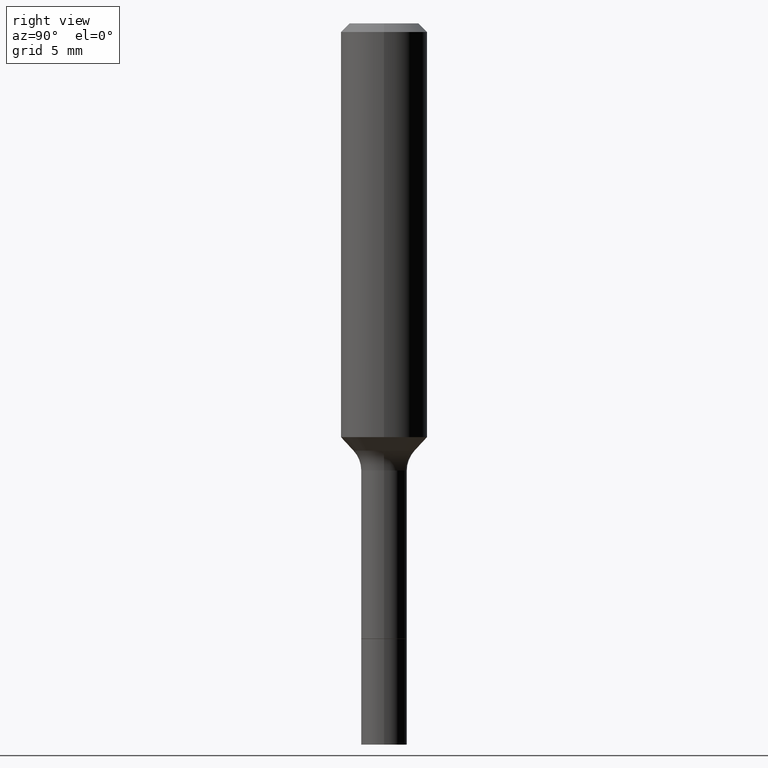
[diagram: clean part render]
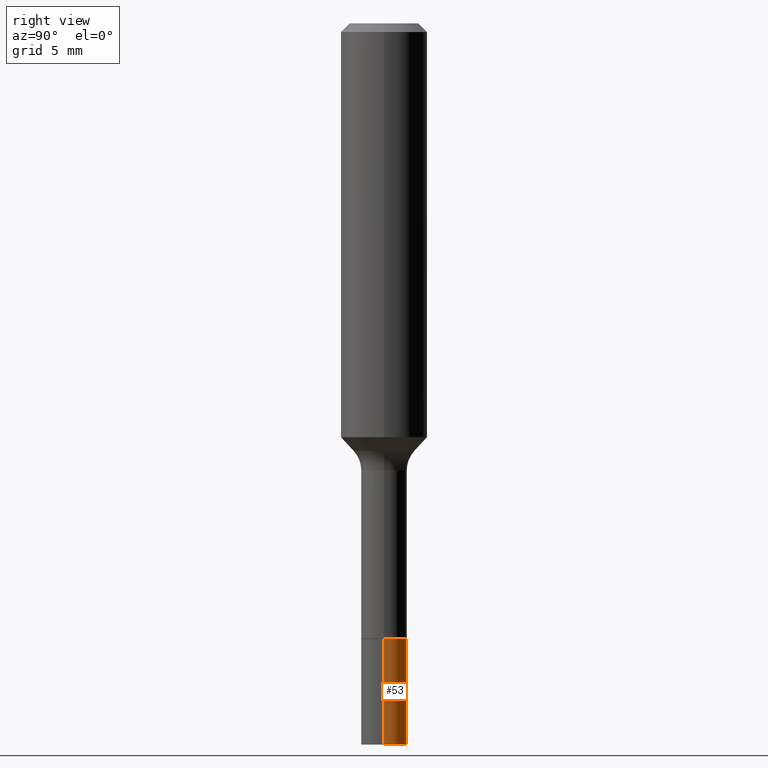
[diagram: same view with one face highlighted and labeled with its STEP entity id]
A machine part, right view. The second image highlights one B-rep face of the part: STEP entity #53.
In plain terms, the highlighted cylindrical surface (edge-blend (fillet) strip) has radius 1.5875 mm, axis along (-0, 0, 1).
Its self-contained STEP definition (entity closure, byte-faithful):
#18 = AXIS2_PLACEMENT_3D ( 'NONE', #362, #289, #367 ) ;
#21 = VERTEX_POINT ( 'NONE', #37 ) ;
#37 = CARTESIAN_POINT ( 'NONE',  ( 0.06250000000000000000, -6.300378075942454082E-15, -1.679499999999999993 ) ) ;
#39 = DIRECTION ( 'NONE',  ( -2.445468806185136597E-29, 3.491481338843145583E-15, 1.000000000000000000 ) ) ;
#40 = EDGE_CURVE ( 'NONE', #504, #225, #359, .T. ) ;
#41 = CARTESIAN_POINT ( 'NONE',  ( 0.06250000000000012490, -7.309416182868124954E-15, -1.968500000000000139 ) ) ;
#48 = CYLINDRICAL_SURFACE ( 'NONE', #140, 0.06250000000000005551 ) ;
#53 = ADVANCED_FACE ( 'NONE', ( #485 ), #48, .T. ) ;
#66 = EDGE_CURVE ( 'NONE', #225, #422, #371, .T. ) ;
#97 = ORIENTED_EDGE ( 'NONE', *, *, #66, .T. ) ;
#100 = EDGE_CURVE ( 'NONE', #21, #422, #303, .T. ) ;
#106 = ORIENTED_EDGE ( 'NONE', *, *, #40, .T. ) ;
#140 = AXIS2_PLACEMENT_3D ( 'NONE', #442, #212, #251 ) ;
#204 = DIRECTION ( 'NONE',  ( 1.000000000000000000, -6.982962677686262766E-15, 0.000000000000000000 ) ) ;
#212 = DIRECTION ( 'NONE',  ( -2.445468806185136597E-29, 3.491481338843145583E-15, 1.000000000000000000 ) ) ;
#220 = LINE ( 'NONE', #306, #285 ) ;
#225 = VERTEX_POINT ( 'NONE', #297 ) ;
#231 = EDGE_LOOP ( 'NONE', ( #106, #97, #409, #316 ) ) ;
#251 = DIRECTION ( 'NONE',  ( 1.000000000000000000, -6.982962677686272233E-15, 0.000000000000000000 ) ) ;
#267 = CARTESIAN_POINT ( 'NONE',  ( -0.06250000000000000000, -5.924372752199834838E-15, -1.679499999999999993 ) ) ;
#278 = EDGE_CURVE ( 'NONE', #504, #21, #220, .T. ) ;
#285 = VECTOR ( 'NONE', #412, 39.37007874015748143 ) ;
#289 = DIRECTION ( 'NONE',  ( -2.445468806185136597E-29, 3.491481338843145583E-15, 1.000000000000000000 ) ) ;
#297 = CARTESIAN_POINT ( 'NONE',  ( -0.06250000000000012490, -5.924372752199833260E-15, -1.968500000000000139 ) ) ;
#303 = CIRCLE ( 'NONE', #335, 0.06250000000000000000 ) ;
#306 = CARTESIAN_POINT ( 'NONE',  ( 0.06250000000000005551, -6.300378075942454871E-15, -1.679499999999999993 ) ) ;
#316 = ORIENTED_EDGE ( 'NONE', *, *, #278, .F. ) ;
#335 = AXIS2_PLACEMENT_3D ( 'NONE', #400, #39, #204 ) ;
#359 = CIRCLE ( 'NONE', #18, 0.06250000000000012490 ) ;
#362 = CARTESIAN_POINT ( 'NONE',  ( 4.813905344975441835E-29, -6.872981015512731707E-15, -1.968500000000000139 ) ) ;
#365 = VECTOR ( 'NONE', #370, 39.37007874015748143 ) ;
#367 = DIRECTION ( 'NONE',  ( 1.000000000000000000, -6.982962677686264344E-15, 0.000000000000000000 ) ) ;
#370 = DIRECTION ( 'NONE',  ( -2.445468806185136877E-29, 3.491481338843145188E-15, 1.000000000000000000 ) ) ;
#371 = LINE ( 'NONE', #517, #365 ) ;
#400 = CARTESIAN_POINT ( 'NONE',  ( 4.107164859987937107E-29, -5.863942908587062413E-15, -1.679499999999999993 ) ) ;
#409 = ORIENTED_EDGE ( 'NONE', *, *, #100, .F. ) ;
#412 = DIRECTION ( 'NONE',  ( -2.445468806185136877E-29, 3.491481338843145188E-15, 1.000000000000000000 ) ) ;
#422 = VERTEX_POINT ( 'NONE', #267 ) ;
#442 = CARTESIAN_POINT ( 'NONE',  ( 4.107164859987937107E-29, -5.863942908587062413E-15, -1.679499999999999993 ) ) ;
#485 = FACE_OUTER_BOUND ( 'NONE', #231, .T. ) ;
#504 = VERTEX_POINT ( 'NONE', #41 ) ;
#517 = CARTESIAN_POINT ( 'NONE',  ( -0.06250000000000005551, -5.419853698736999008E-15, -1.679499999999999993 ) ) ;